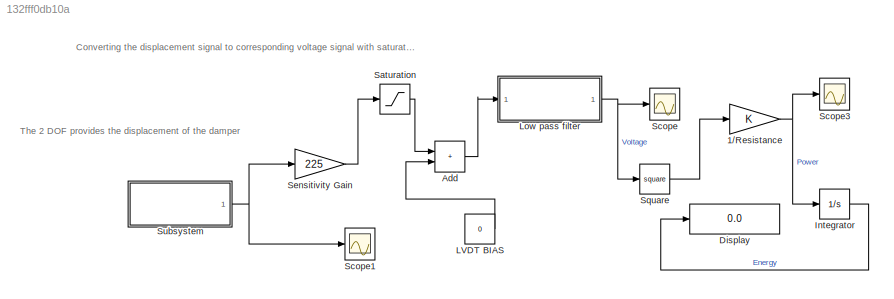
MODEL slx_132fff0db10a
KIND model
CONFIG AbsTol = auto
CONFIG EnableMultiTasking = off
CONFIG FixedStep = auto
CONFIG MaxStep = auto
CONFIG MinStep = auto
CONFIG RelTol = 1e-3
CONFIG SampleTimeConstraint = Unconstrained
CONFIG Solver = VariableStepAuto
CONFIG SolverName = VariableStepAuto
CONFIG StartTime = 0.0
CONFIG StopTime = 120
BLOCK [Gain] 1//Resistance
BLOCK [Sum] Add
  IconShape = rectangular
  Ports = [2, 1]
BLOCK [Display] Display
  Decimation = 1
  Ports = [1]
BLOCK [Integrator] Integrator
  Ports = [1, 1]
BLOCK [Constant] LVDT BIAS
  Value = 0
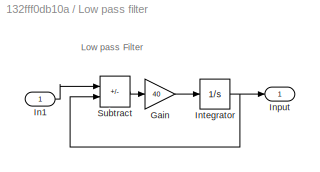
BLOCK [SubSystem] Low pass filter
  Ports = [1, 1]
  RequestExecContextInheritance = off
BLOCK [Gain] Low pass filter/Gain
  Gain = 40
BLOCK [Inport] Low pass filter/In1
BLOCK [Outport] Low pass filter/Input
BLOCK [Integrator] Low pass filter/Integrator
  Ports = [1, 1]
BLOCK [Sum] Low pass filter/Subtract
  IconShape = rectangular
  Inputs = +-
  Ports = [2, 1]
BLOCK [Saturate] Saturation
  LowerLimit = -6
  UpperLimit = 6
BLOCK [Scope] Scope
  Floating = off
  NumInputPorts = 1
  Ports = [1]
  ScopeSpecificationString = Simulink.scopes.TimeScopeBlockCfg('CurrentConfiguration', extmgr.ConfigurationSet(extmgr.Configuration('Core','General UI',true),extmgr.Configuration('Core','Source UI',true),extmgr.Configuration('Sources','WiredSimulink',true,'DataLoggingVariableName','ScopeData1'),extmgr.Configuration('Visuals','Time Domain',true,'SerializedDisplays',{struct('MinYLimReal','-1.04876','MaxYLimReal','6.75','YLabelR...<+1410ch>
BLOCK [Scope] Scope1
  Floating = off
  NumInputPorts = 1
  Ports = [1]
  ScopeSpecificationString = Simulink.scopes.TimeScopeBlockCfg('CurrentConfiguration', extmgr.ConfigurationSet(extmgr.Configuration('Core','General UI',true),extmgr.Configuration('Core','Source UI',true),extmgr.Configuration('Sources','WiredSimulink',true,'DataLoggingVariableName','ScopeData2'),extmgr.Configuration('Visuals','Time Domain',true,'SerializedDisplays',{struct('MinYLimReal','-0.0565','MaxYLimReal','0.04303','YLabe...<+1393ch>
BLOCK [Scope] Scope3
  Floating = off
  NumInputPorts = 1
  Ports = [1]
  ScopeSpecificationString = Simulink.scopes.TimeScopeBlockCfg('CurrentConfiguration', extmgr.ConfigurationSet(extmgr.Configuration('Core','General UI',true),extmgr.Configuration('Core','Source UI',true),extmgr.Configuration('Sources','WiredSimulink',true,'DataLoggingVariableName','ScopeData4'),extmgr.Configuration('Visuals','Time Domain',true,'SerializedDisplays',{struct('MinYLimReal','-0.75','MaxYLimReal','6.75','YLabelReal...<+1394ch>
BLOCK [Gain] Sensitivity Gain
  Gain = 225
BLOCK [Math] Square
  Operator = square
  Ports = [1, 1]
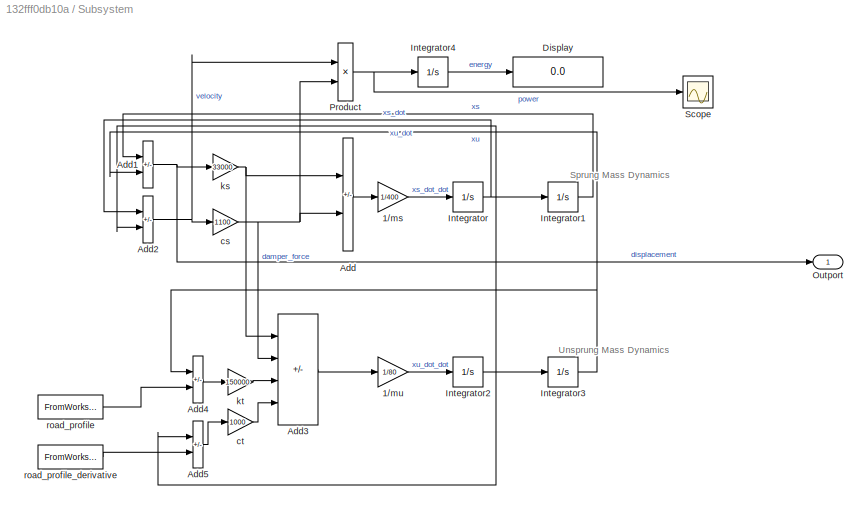
BLOCK [SubSystem] Subsystem
  Ports = [0, 1]
  RequestExecContextInheritance = off
BLOCK [Gain] Subsystem/1//ms
  Gain = 1/400
BLOCK [Gain] Subsystem/1//mu
  Gain = 1/80
BLOCK [Sum] Subsystem/Add
  IconShape = rectangular
  Inputs = --
  Ports = [2, 1]
BLOCK [Sum] Subsystem/Add1
  IconShape = rectangular
  Inputs = +-
  Ports = [2, 1]
BLOCK [Sum] Subsystem/Add2
  IconShape = rectangular
  Inputs = +-
  Ports = [2, 1]
BLOCK [Sum] Subsystem/Add3
  IconShape = rectangular
  Inputs = ++--
  Ports = [4, 1]
BLOCK [Sum] Subsystem/Add4
  IconShape = rectangular
  Inputs = +-
  Ports = [2, 1]
BLOCK [Sum] Subsystem/Add5
  IconShape = rectangular
  Inputs = +-
  Ports = [2, 1]
BLOCK [Display] Subsystem/Display
  Decimation = 2
  Ports = [1]
BLOCK [Integrator] Subsystem/Integrator
  Ports = [1, 1]
BLOCK [Integrator] Subsystem/Integrator1
  Ports = [1, 1]
BLOCK [Integrator] Subsystem/Integrator2
  Ports = [1, 1]
BLOCK [Integrator] Subsystem/Integrator3
  Ports = [1, 1]
BLOCK [Integrator] Subsystem/Integrator4
  Ports = [1, 1]
BLOCK [Outport] Subsystem/Outport
BLOCK [Product] Subsystem/Product
  Ports = [2, 1]
BLOCK [Scope] Subsystem/Scope
  Floating = off
  NumInputPorts = 1
  Ports = [1]
  ScopeSpecificationString = Simulink.scopes.TimeScopeBlockCfg('CurrentConfiguration', extmgr.ConfigurationSet(extmgr.Configuration('Core','General UI',true),extmgr.Configuration('Core','Source UI',true),extmgr.Configuration('Sources','WiredSimulink',true),extmgr.Configuration('Visuals','Time Domain',true,'SerializedDisplays',{struct('MinYLimReal','2.00446','MaxYLimReal','189.7341','YLabelReal','','MinYLimMag','2.00446','MaxY...<+1370ch>
BLOCK [Gain] Subsystem/cs
  Gain = 1100
BLOCK [Gain] Subsystem/ct
  Gain = 1000
BLOCK [Gain] Subsystem/ks
  Gain = 33000
  NameLocation = top
BLOCK [Gain] Subsystem/kt
  Gain = 150000
  NameLocation = top
BLOCK [FromWorkspace] Subsystem/road_profile
  NameLocation = top
  VariableName = rp
BLOCK [FromWorkspace] Subsystem/road_profile_derivative
  VariableName = rp_dot
ANNOTATION (root): Converting the displacement signal to corresponding voltage signal with saturation of +-6 V
ANNOTATION (root): The 2 DOF provides the displacement of the damper
ANNOTATION Low pass filter: Low pass Filter
ANNOTATION Subsystem: Sprung Mass Dynamics
ANNOTATION Subsystem: Unsprung Mass Dynamics
NET 1//Resistance:1 -> Integrator:1, Scope3:1
LINE Add:1 -> Low pass filter:1
LINE Integrator:1 -> Display:1
LINE LVDT BIAS:1 -> Add:2
LINE Low pass filter/Gain:1 -> Low pass filter/Integrator:1
LINE Low pass filter/In1:1 -> Low pass filter/Subtract:1
NET Low pass filter/Integrator:1 -> Low pass filter/Input:1, Low pass filter/Subtract:2
LINE Low pass filter/Subtract:1 -> Low pass filter/Gain:1
NET Low pass filter:1 -> Scope:1, Square:1
LINE Saturation:1 -> Add:1
LINE Sensitivity Gain:1 -> Saturation:1
LINE Square:1 -> 1//Resistance:1
LINE Subsystem/1//ms:1 -> Subsystem/Integrator:1
LINE Subsystem/1//mu:1 -> Subsystem/Integrator2:1
NET Subsystem/Add1:1 -> Subsystem/Outport:1, Subsystem/ks:1
NET Subsystem/Add2:1 -> Subsystem/Product:1, Subsystem/cs:1
LINE Subsystem/Add3:1 -> Subsystem/1//mu:1
LINE Subsystem/Add4:1 -> Subsystem/kt:1
LINE Subsystem/Add5:1 -> Subsystem/ct:1
LINE Subsystem/Add:1 -> Subsystem/1//ms:1
LINE Subsystem/Integrator1:1 -> Subsystem/Add1:1
NET Subsystem/Integrator2:1 -> Subsystem/Add2:2, Subsystem/Add5:1, Subsystem/Integrator3:1
NET Subsystem/Integrator3:1 -> Subsystem/Add1:2, Subsystem/Add4:1
LINE Subsystem/Integrator4:1 -> Subsystem/Display:1
NET Subsystem/Integrator:1 -> Subsystem/Add2:1, Subsystem/Integrator1:1
NET Subsystem/Product:1 -> Subsystem/Integrator4:1, Subsystem/Scope:1
NET Subsystem/cs:1 -> Subsystem/Add3:2, Subsystem/Add:2, Subsystem/Product:2
LINE Subsystem/ct:1 -> Subsystem/Add3:4
NET Subsystem/ks:1 -> Subsystem/Add3:1, Subsystem/Add:1
LINE Subsystem/kt:1 -> Subsystem/Add3:3
LINE Subsystem/road_profile:1 -> Subsystem/Add4:2
LINE Subsystem/road_profile_derivative:1 -> Subsystem/Add5:2
NET Subsystem:1 -> Scope1:1, Sensitivity Gain:1
note: NET lines group one-source signal fan-out (src -> all destinations, sorted); 1:1 wires keep LINE
